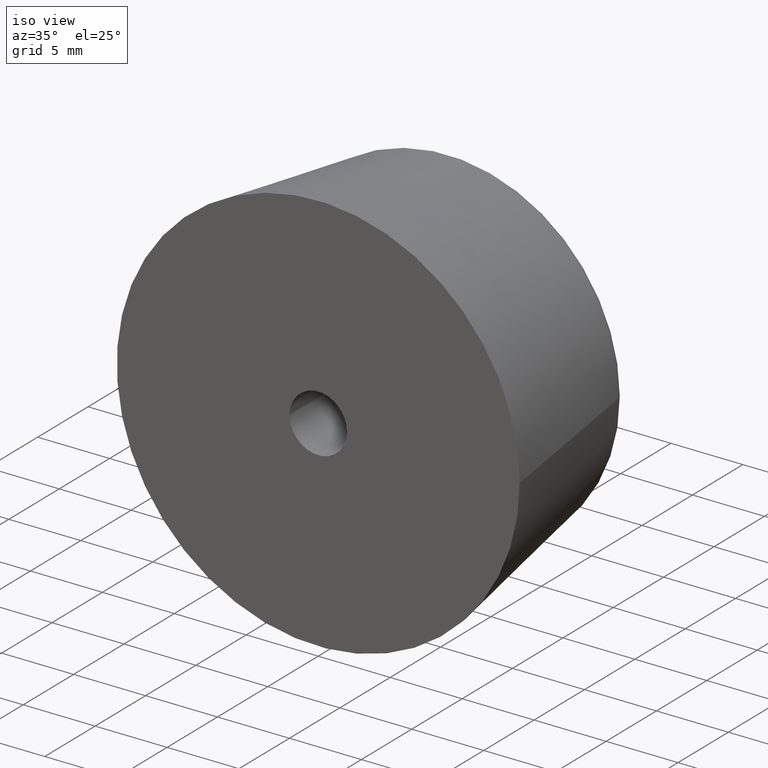
[diagram: clean part render]
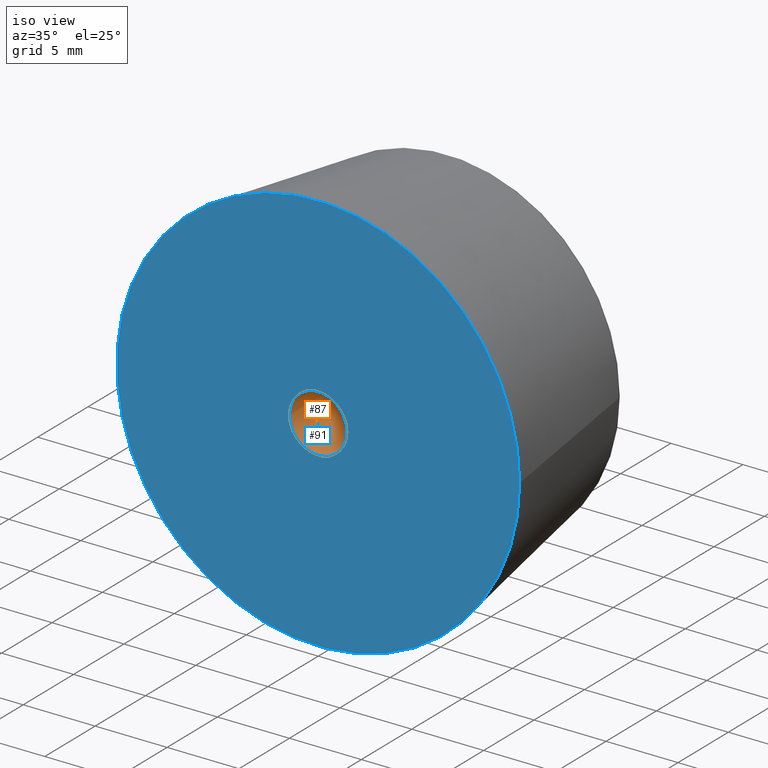
[diagram: same view with the hole feature highlighted: cylindrical wall and planar end face, labeled with their STEP entity ids]
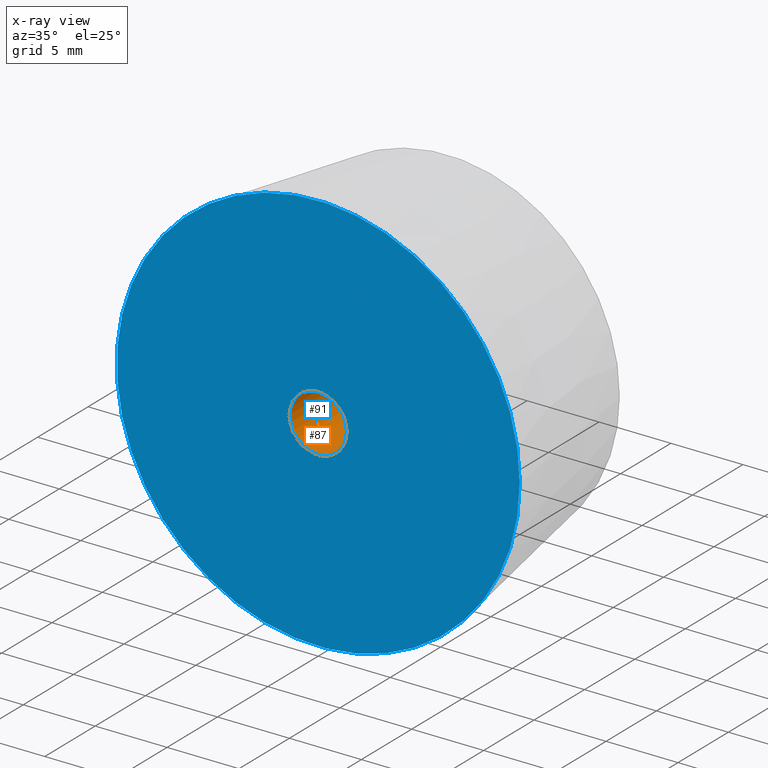
[diagram: x-ray of the same camera — body ghosted, the hole faces saturated]
A machine part, iso view. The highlighted faces form one hole feature of diameter 4 mm: the cylindrical wall (entity #87, orange) and its adjacent planar end face (entity #91, blue) — they share a circular edge in the B-rep.
The next image is the same camera in x-ray (body ghosted, the hole faces saturated) — the bore reads through the body.
Wall:
#17=CYLINDRICAL_SURFACE('',#99,2.);
#23=FACE_BOUND('',#40,.T.);
#30=FACE_OUTER_BOUND('',#39,.T.);
#39=EDGE_LOOP('',(#74));
#40=EDGE_LOOP('',(#75));
#52=CIRCLE('',#100,2.);
#53=CIRCLE('',#101,2.);
#59=VERTEX_POINT('',#148);
#60=VERTEX_POINT('',#150);
#66=EDGE_CURVE('',#59,#59,#52,.T.);
#67=EDGE_CURVE('',#60,#60,#53,.T.);
#74=ORIENTED_EDGE('',*,*,#66,.F.);
#75=ORIENTED_EDGE('',*,*,#67,.F.);
#87=ADVANCED_FACE('',(#30,#23),#17,.F.);
#99=AXIS2_PLACEMENT_3D('',#147,#120,#121);
#100=AXIS2_PLACEMENT_3D('',#149,#122,#123);
#101=AXIS2_PLACEMENT_3D('',#151,#124,#125);
#120=DIRECTION('center_axis',(0.,1.,0.));
#121=DIRECTION('ref_axis',(-1.,0.,0.));
#122=DIRECTION('center_axis',(0.,1.,0.));
#123=DIRECTION('ref_axis',(-1.,0.,0.));
#124=DIRECTION('center_axis',(0.,-1.,0.));
#125=DIRECTION('ref_axis',(-1.,0.,0.));
#147=CARTESIAN_POINT('Origin',(0.,-33.6773319683494,0.));
#148=CARTESIAN_POINT('',(2.,0.,-2.44929359829471E-16));
#149=CARTESIAN_POINT('Origin',(0.,0.,0.));
#150=CARTESIAN_POINT('',(-2.,8.,0.));
#151=CARTESIAN_POINT('Origin',(0.,8.,0.));
End face:
#16=PLANE('',#107);
#27=FACE_BOUND('',#48,.T.);
#34=FACE_OUTER_BOUND('',#47,.T.);
#47=EDGE_LOOP('',(#82));
#48=EDGE_LOOP('',(#83));
#51=CIRCLE('',#98,14.);
#52=CIRCLE('',#100,2.);
#58=VERTEX_POINT('',#145);
#59=VERTEX_POINT('',#148);
#65=EDGE_CURVE('',#58,#58,#51,.T.);
#66=EDGE_CURVE('',#59,#59,#52,.T.);
#82=ORIENTED_EDGE('',*,*,#65,.F.);
#83=ORIENTED_EDGE('',*,*,#66,.T.);
#91=ADVANCED_FACE('',(#34,#27),#16,.F.);
#98=AXIS2_PLACEMENT_3D('',#146,#118,#119);
#100=AXIS2_PLACEMENT_3D('',#149,#122,#123);
#107=AXIS2_PLACEMENT_3D('',#159,#136,#137);
#118=DIRECTION('center_axis',(0.,1.,0.));
#119=DIRECTION('ref_axis',(1.,0.,0.));
#122=DIRECTION('center_axis',(0.,1.,0.));
#123=DIRECTION('ref_axis',(-1.,0.,0.));
#136=DIRECTION('center_axis',(0.,1.,0.));
#137=DIRECTION('ref_axis',(0.,0.,1.));
#145=CARTESIAN_POINT('',(14.,0.,0.));
#146=CARTESIAN_POINT('Origin',(0.,0.,0.));
#148=CARTESIAN_POINT('',(2.,0.,-2.44929359829471E-16));
#149=CARTESIAN_POINT('Origin',(0.,0.,0.));
#159=CARTESIAN_POINT('Origin',(0.,0.,0.));